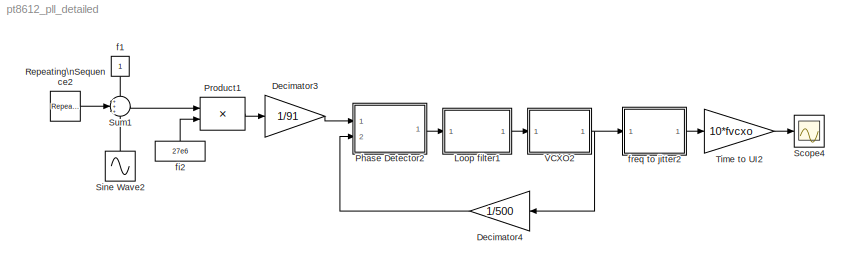
MODEL pt8612_pll_detailed
KIND model
CONFIG AbsTol = 1e-12
CONFIG FixedStep = auto
CONFIG MaxStep = 1/fpll/20
CONFIG MinStep = auto
CONFIG RelTol = 1e-9
CONFIG Solver = ode45
CONFIG SolverMode = Auto
CONFIG StartTime = 0.0
CONFIG StopTime = 10.0
BLOCK [Gain] Decimator3
  Gain = 1/91
BLOCK [Gain] Decimator4
  Gain = 1/500
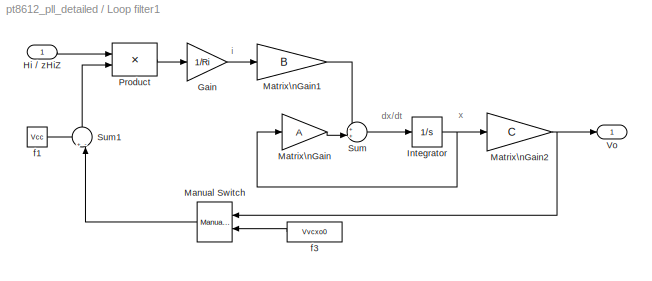
BLOCK [SubSystem] Loop filter1
  Ports = [1, 1]
  TreatAsAtomicUnit = off
BLOCK [Gain] Loop filter1/Gain
  Gain = 1/Ri
BLOCK [Inport] Loop filter1/Hi // zHiZ
BLOCK [Integrator] Loop filter1/Integrator
  InitialCondition = [1.25 1.25].'
  Ports = [1, 1]
BLOCK [Reference] Loop filter1/Manual Switch  REF=simulink/Signal\nRouting/Manual Switch
  Ports = [2, 1]
  SourceBlock = simulink/Signal\nRouting/Manual Switch
  SourceType = Manual Switch
  action = 0
  sw = 1
BLOCK [Gain] Loop filter1/Matrix\nGain
  Gain = A
  Multiplication = Matrix(K*u) (u vector)
BLOCK [Gain] Loop filter1/Matrix\nGain1
  Gain = B
  Multiplication = Matrix(K*u)
BLOCK [Gain] Loop filter1/Matrix\nGain2
  Gain = C
  Multiplication = Matrix(K*u) (u vector)
BLOCK [Product] Loop filter1/Product
  InputSameDT = off
  Ports = [2, 1]
BLOCK [Sum] Loop filter1/Sum
  IconShape = round
  InputSameDT = off
  Inputs = ++|
  OutDataTypeMode = Inherit via internal rule
  Ports = [2, 1]
BLOCK [Sum] Loop filter1/Sum1
  IconShape = round
  InputSameDT = off
  Inputs = +-|
  OutDataTypeMode = Inherit via internal rule
  Ports = [2, 1]
BLOCK [Outport] Loop filter1/Vo
BLOCK [Constant] Loop filter1/f1
  Value = Vcc
BLOCK [Constant] Loop filter1/f3
  Value = Vvcxo0
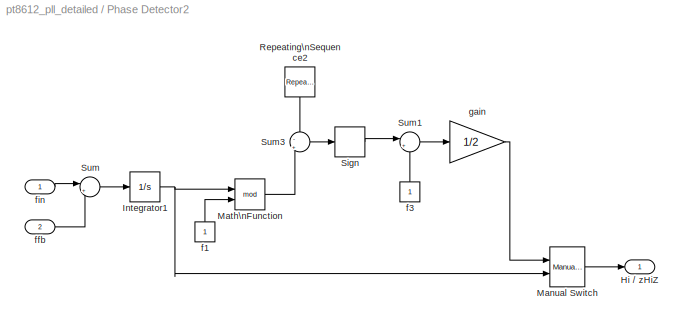
BLOCK [SubSystem] Phase Detector2
  Ports = [2, 1]
  TreatAsAtomicUnit = off
BLOCK [Outport] Phase Detector2/Hi // zHiZ
BLOCK [Integrator] Phase Detector2/Integrator1
  InitialCondition = 0.062
  Ports = [1, 1]
BLOCK [Reference] Phase Detector2/Manual Switch  REF=simulink/Signal\nRouting/Manual Switch
  Ports = [2, 1]
  SourceBlock = simulink/Signal\nRouting/Manual Switch
  SourceType = Manual Switch
  action = 0
  sw = 0
BLOCK [Math] Phase Detector2/Math\nFunction
  Operator = mod
  Ports = [2, 1]
BLOCK [Reference] Phase Detector2/Repeating\nSequence2  REF=simulink/Sources/Repeating\nSequence
  Ports = [0, 1]
  SourceBlock = simulink/Sources/Repeating\nSequence
  SourceType = Repeating table
  rep_seq_t = [0 1]/fpll
  rep_seq_y = [0 1]
BLOCK [Signum] Phase Detector2/Sign
BLOCK [Sum] Phase Detector2/Sum
  IconShape = round
  InputSameDT = off
  Inputs = |+-
  OutDataTypeMode = Inherit via internal rule
  Ports = [2, 1]
BLOCK [Sum] Phase Detector2/Sum1
  IconShape = round
  InputSameDT = off
  Inputs = |++
  OutDataTypeMode = Inherit via internal rule
  Ports = [2, 1]
BLOCK [Sum] Phase Detector2/Sum3
  IconShape = round
  InputSameDT = off
  Inputs = -|+
  OutDataTypeMode = Inherit via internal rule
  Ports = [2, 1]
BLOCK [Constant] Phase Detector2/f1
BLOCK [Constant] Phase Detector2/f3
BLOCK [Inport] Phase Detector2/ffb
  Port = 2
BLOCK [Inport] Phase Detector2/fin
BLOCK [Gain] Phase Detector2/gain
  Gain = 1/2
BLOCK [Product] Product1
  InputSameDT = off
  Ports = [2, 1]
BLOCK [Reference] Repeating\nSequence2  REF=simulink/Sources/Repeating\nSequence
  Ports = [0, 1]
  SourceBlock = simulink/Sources/Repeating\nSequence
  SourceType = Repeating table
  rep_seq_t = [0 50 50 100]
  rep_seq_y = [-1 -1 1 1]*0e-6
BLOCK [Scope] Scope4
  DataFormat = StructureWithTime
  LimitDataPoints = off
  NumInputPorts = 1
  Ports = [1]
  SaveName = ScopeData1
  TimeRange = 10
  YMax = 6.1
  YMin = 3.9
  ZoomMode = xonly
BLOCK [Sin] Sine Wave2
  Amplitude = 0e-6
  SampleTime = 0
  SineType = Time based
BLOCK [Sum] Sum1
  IconShape = round
  InputSameDT = off
  Inputs = +++
  OutDataTypeMode = Inherit via internal rule
  Ports = [3, 1]
BLOCK [Gain] Time to UI2
  Gain = 10*fvcxo
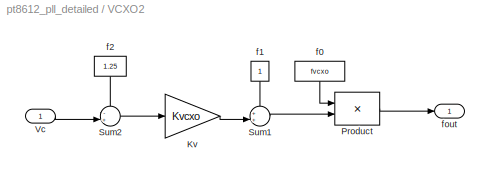
BLOCK [SubSystem] VCXO2
  Ports = [1, 1]
  TreatAsAtomicUnit = off
BLOCK [Gain] VCXO2/Kv
  Gain = Kvcxo
BLOCK [Product] VCXO2/Product
  InputSameDT = off
  Ports = [2, 1]
BLOCK [Sum] VCXO2/Sum1
  IconShape = round
  InputSameDT = off
  Inputs = ++|
  OutDataTypeMode = Inherit via internal rule
  Ports = [2, 1]
BLOCK [Sum] VCXO2/Sum2
  IconShape = round
  InputSameDT = off
  Inputs = -+|
  OutDataTypeMode = Inherit via internal rule
  Ports = [2, 1]
BLOCK [Inport] VCXO2/Vc
BLOCK [Constant] VCXO2/f0
  Value = fvcxo
BLOCK [Constant] VCXO2/f1
BLOCK [Constant] VCXO2/f2
  Value = 1.25
BLOCK [Outport] VCXO2/fout
BLOCK [Constant] f1
BLOCK [Constant] fi2
  Value = 27e6
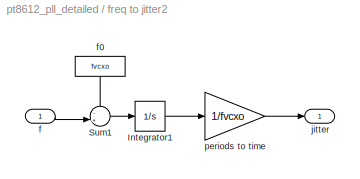
BLOCK [SubSystem] freq to jitter2
  Ports = [1, 1]
  TreatAsAtomicUnit = off
BLOCK [Integrator] freq to jitter2/Integrator1
  Ports = [1, 1]
BLOCK [Sum] freq to jitter2/Sum1
  IconShape = round
  InputSameDT = off
  Inputs = -+|
  OutDataTypeMode = Inherit via internal rule
  Ports = [2, 1]
BLOCK [Inport] freq to jitter2/f
BLOCK [Constant] freq to jitter2/f0
  Value = fvcxo
BLOCK [Outport] freq to jitter2/jitter
BLOCK [Gain] freq to jitter2/periods to time
  Gain = 1/fvcxo
ANNOTATION Loop filter1: dx/dt
ANNOTATION Loop filter1: i
ANNOTATION Loop filter1: x
LINE Decimator3:1 -> Phase Detector2:1
LINE Decimator4:1 -> Phase Detector2:2
LINE Loop filter1/Gain:1 -> Loop filter1/Matrix\nGain1:1
LINE Loop filter1/Hi // zHiZ:1 -> Loop filter1/Product:1
NET Loop filter1/Integrator:1 -> Loop filter1/Matrix\nGain2:1, Loop filter1/Matrix\nGain:1
LINE Loop filter1/Manual Switch:1 -> Loop filter1/Sum1:2
LINE Loop filter1/Matrix\nGain1:1 -> Loop filter1/Sum:1
NET Loop filter1/Matrix\nGain2:1 -> Loop filter1/Manual Switch:1, Loop filter1/Vo:1
LINE Loop filter1/Matrix\nGain:1 -> Loop filter1/Sum:2
LINE Loop filter1/Product:1 -> Loop filter1/Gain:1
LINE Loop filter1/Sum1:1 -> Loop filter1/Product:2
LINE Loop filter1/Sum:1 -> Loop filter1/Integrator:1
LINE Loop filter1/f1:1 -> Loop filter1/Sum1:1
LINE Loop filter1/f3:1 -> Loop filter1/Manual Switch:2
LINE Loop filter1:1 -> VCXO2:1
NET Phase Detector2/Integrator1:1 -> Phase Detector2/Manual Switch:2, Phase Detector2/Math\nFunction:1
LINE Phase Detector2/Manual Switch:1 -> Phase Detector2/Hi // zHiZ:1
LINE Phase Detector2/Math\nFunction:1 -> Phase Detector2/Sum3:2
LINE Phase Detector2/Repeating\nSequence2:1 -> Phase Detector2/Sum3:1
LINE Phase Detector2/Sign:1 -> Phase Detector2/Sum1:1
LINE Phase Detector2/Sum1:1 -> Phase Detector2/gain:1
LINE Phase Detector2/Sum3:1 -> Phase Detector2/Sign:1
LINE Phase Detector2/Sum:1 -> Phase Detector2/Integrator1:1
LINE Phase Detector2/f1:1 -> Phase Detector2/Math\nFunction:2
LINE Phase Detector2/f3:1 -> Phase Detector2/Sum1:2
LINE Phase Detector2/ffb:1 -> Phase Detector2/Sum:2
LINE Phase Detector2/fin:1 -> Phase Detector2/Sum:1
LINE Phase Detector2/gain:1 -> Phase Detector2/Manual Switch:1
LINE Phase Detector2:1 -> Loop filter1:1
LINE Product1:1 -> Decimator3:1
LINE Repeating\nSequence2:1 -> Sum1:2
LINE Sine Wave2:1 -> Sum1:3
LINE Sum1:1 -> Product1:1
LINE Time to UI2:1 -> Scope4:1
LINE VCXO2/Kv:1 -> VCXO2/Sum1:2
LINE VCXO2/Product:1 -> VCXO2/fout:1
LINE VCXO2/Sum1:1 -> VCXO2/Product:2
LINE VCXO2/Sum2:1 -> VCXO2/Kv:1
LINE VCXO2/Vc:1 -> VCXO2/Sum2:2
LINE VCXO2/f0:1 -> VCXO2/Product:1
LINE VCXO2/f1:1 -> VCXO2/Sum1:1
LINE VCXO2/f2:1 -> VCXO2/Sum2:1
NET VCXO2:1 -> Decimator4:1, freq to jitter2:1
LINE f1:1 -> Sum1:1
LINE fi2:1 -> Product1:2
LINE freq to jitter2/Integrator1:1 -> freq to jitter2/periods to time:1
LINE freq to jitter2/Sum1:1 -> freq to jitter2/Integrator1:1
LINE freq to jitter2/f0:1 -> freq to jitter2/Sum1:1
LINE freq to jitter2/f:1 -> freq to jitter2/Sum1:2
LINE freq to jitter2/periods to time:1 -> freq to jitter2/jitter:1
LINE freq to jitter2:1 -> Time to UI2:1
note: NET lines group one-source signal fan-out (src -> all destinations, sorted); 1:1 wires keep LINE
